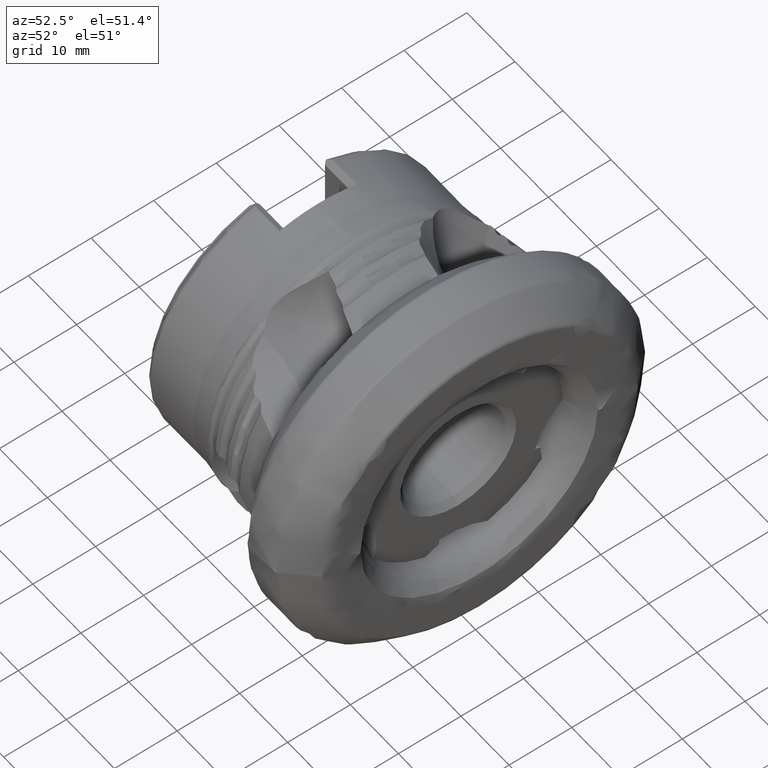
[diagram: clean part render]
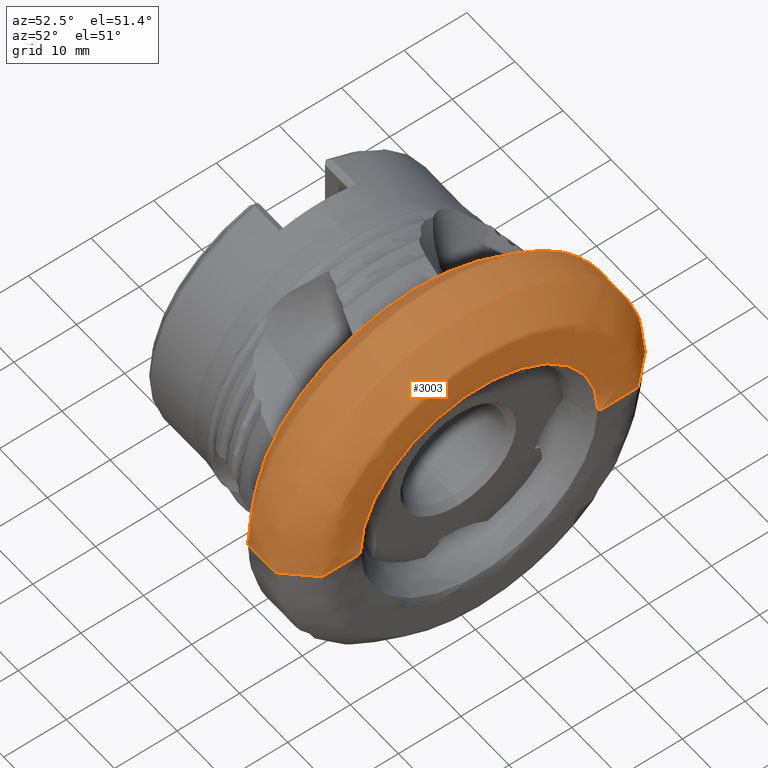
[diagram: same view with one face highlighted and labeled with its STEP entity id]
A machine part, auxiliary view. The second image highlights one B-rep face of the part: STEP entity #3003.
In plain terms, the highlighted face is a freeform B-spline surface patch.
Its self-contained STEP definition (entity closure, byte-faithful):
#25 = CARTESIAN_POINT ( 'NONE',  ( 0.9432454846536810800, 19.90024983827806100, 39.80049967655611500 ) ) ;
#38 = CARTESIAN_POINT ( 'NONE',  ( -10.80551909559559000, 27.66160587555212300, 0.0000000000000000000 ) ) ;
#58 = CARTESIAN_POINT ( 'NONE',  ( 0.9046706777717163900, -19.16180625982527600, 38.32361251965055300 ) ) ;
#68 = CARTESIAN_POINT ( 'NONE',  ( -12.54006868245714100, 25.83714694382475900, 51.67429388764951200 ) ) ;
#86 = CARTESIAN_POINT ( 'NONE',  ( 0.9412596605037986100, -19.62641869342596100, 2.403543083162987700E-015 ) ) ;
#98 = CARTESIAN_POINT ( 'NONE',  ( -12.31998867677176300, 26.04140956191254500, 0.0000000000000000000 ) ) ;
#153 = CARTESIAN_POINT ( 'NONE',  ( -0.07305477684879077600, -26.30704612836137500, 3.221683983611952300E-015 ) ) ;
#184 = CARTESIAN_POINT ( 'NONE',  ( 0.9423013763686909300, 21.55155726088563700, 0.0000000000000000000 ) ) ;
#216 = CARTESIAN_POINT ( 'NONE',  ( 0.9424311464093959600, -23.42163104762342500, 46.84326209524685700 ) ) ;
#247 = CARTESIAN_POINT ( 'NONE',  ( 0.6179509337562465500, 25.58180451469969800, 51.16360902939938900 ) ) ;
#302 = EDGE_CURVE ( 'NONE', #7134, #8821, #2266, .T. ) ;
#307 = ORIENTED_EDGE ( 'NONE', *, *, #302, .T. ) ;
#342 = CARTESIAN_POINT ( 'NONE',  ( -3.722625662220722100, -29.54884456436069900, 3.618689791424699000E-015 ) ) ;
#404 = CARTESIAN_POINT ( 'NONE',  ( 0.7385561130063006400, -18.94453239233411100, 2.969985204639369900E-015 ) ) ;
#418 = CARTESIAN_POINT ( 'NONE',  ( -3.576490290116724600, 29.54475454598643200, 59.08950909197286400 ) ) ;
#445 = EDGE_LOOP ( 'NONE', ( #2298, #3347, #307, #4230 ) ) ;
#450 = CARTESIAN_POINT ( 'NONE',  ( -1.457727430506216700, -27.75488882506936200, 55.50977765013872300 ) ) ;
#462 = CARTESIAN_POINT ( 'NONE',  ( 0.9423630900099132500, 22.23558242996433500, 0.0000000000000000000 ) ) ;
#487 = CARTESIAN_POINT ( 'NONE',  ( -0.7401236896275597000, -27.00449980271787700, 54.00899960543575400 ) ) ;
#514 = CARTESIAN_POINT ( 'NONE',  ( -10.53310990459484800, 27.94660367724533100, 0.0000000000000000000 ) ) ;
#522 = CARTESIAN_POINT ( 'NONE',  ( -2.860561921814703800, -29.21975289845814700, 58.43950579691629300 ) ) ;
#553 = CARTESIAN_POINT ( 'NONE',  ( -7.539639875171382700, 29.54635387461969400, 0.0000000000000000000 ) ) ;
#555 = CARTESIAN_POINT ( 'NONE',  ( -9.911627526682799800, -28.59656424641206800, 3.502069087098017700E-015 ) ) ;
#588 = CARTESIAN_POINT ( 'NONE',  ( -8.222392985685424100, -29.55900686008037300, 59.11801372016074700 ) ) ;
#601 = CARTESIAN_POINT ( 'NONE',  ( -1.799504284054661100, 28.11222450101322700, 0.0000000000000000000 ) ) ;
#602 = CARTESIAN_POINT ( 'NONE',  ( -11.12757802941413700, -27.32534052311214300, 3.346389080724074200E-015 ) ) ;
#624 = CARTESIAN_POINT ( 'NONE',  ( -8.939361004888086300, 29.52734492707421400, 0.0000000000000000000 ) ) ;
#638 = CARTESIAN_POINT ( 'NONE',  ( -10.53310990459484300, -27.94660367724533900, 3.422471874037814800E-015 ) ) ;
#653 = CARTESIAN_POINT ( 'NONE',  ( -6.806665271365522700, -29.55139728770377900, 3.619002409871820600E-015 ) ) ;
#665 = CARTESIAN_POINT ( 'NONE',  ( -3.982329476408136500, 29.54672495242269600, 0.0000000000000000000 ) ) ;
#685 = CARTESIAN_POINT ( 'NONE',  ( -8.222392985685433000, 29.55900686008037300, 59.11801372016073200 ) ) ;
#733 = CARTESIAN_POINT ( 'NONE',  ( -3.722625662220729200, 29.54884456436069600, 0.0000000000000000000 ) ) ;
#743 = CARTESIAN_POINT ( 'NONE',  ( 0.9477285725953520400, 19.40911838058831400, 0.0000000000000000000 ) ) ;
#777 = CARTESIAN_POINT ( 'NONE',  ( -11.98519445289182900, -26.44107188957692900, 52.88214377915385700 ) ) ;
#808 = CARTESIAN_POINT ( 'NONE',  ( -12.54006868245713600, -25.83714694382475900, 51.67429388764951200 ) ) ;
#843 = CARTESIAN_POINT ( 'NONE',  ( -12.54006868245713600, -25.83714694382476700, 3.164137930385481000E-015 ) ) ;
#894 = CARTESIAN_POINT ( 'NONE',  ( -0.3982616007149070700, 26.64697253576205300, 0.0000000000000000000 ) ) ;
#928 = CARTESIAN_POINT ( 'NONE',  ( 0.9422988422732790900, -22.86185111452961700, 2.799769278999204000E-015 ) ) ;
#954 = CARTESIAN_POINT ( 'NONE',  ( -5.211291410143413600, 29.55073275541029800, 0.0000000000000000000 ) ) ;
#966 = CARTESIAN_POINT ( 'NONE',  ( 0.9420584297515514100, 23.85718761406077300, 47.71437522812152600 ) ) ;
#993 = CARTESIAN_POINT ( 'NONE',  ( 0.2021584443197662900, 26.01875313578119600, 0.0000000000000000000 ) ) ;
#1086 = CARTESIAN_POINT ( 'NONE',  ( -4.310775778502399900, -29.55186483981307800, 3.619059668491229500E-015 ) ) ;
#1113 = CARTESIAN_POINT ( 'NONE',  ( -2.986595722950437200, -29.35738610956820700, 3.595242893041566700E-015 ) ) ;
#1130 = CARTESIAN_POINT ( 'NONE',  ( -2.986595722950437200, -29.35738610956820700, 3.595242893041566700E-015 ) ) ;
#1167 = CARTESIAN_POINT ( 'NONE',  ( -3.722625662220729200, 29.54884456436069200, 59.09768912872138500 ) ) ;
#1179 = CARTESIAN_POINT ( 'NONE',  ( 0.7385561130062965300, 18.94453239233411100, 0.0000000000000000000 ) ) ;
#1182 = CARTESIAN_POINT ( 'NONE',  ( 0.7917899504424832400, -19.00822990085851000, 2.327836790554338200E-015 ) ) ;
#1197 = CARTESIAN_POINT ( 'NONE',  ( -9.310194076376896900, 29.22340911848167300, 0.0000000000000000000 ) ) ;
#1210 = CARTESIAN_POINT ( 'NONE',  ( -2.163949810604834500, -28.49345900637640500, 56.98691801275281000 ) ) ;
#1223 = CARTESIAN_POINT ( 'NONE',  ( -5.211291410143407400, -29.55073275541030100, 3.618921028137205800E-015 ) ) ;
#1239 = CARTESIAN_POINT ( 'NONE',  ( -1.457727430506216900, -27.75488882506936900, 3.398993576031184200E-015 ) ) ;
#1258 = CARTESIAN_POINT ( 'NONE',  ( -11.50153607037655900, 26.93072593389008400, 0.0000000000000000000 ) ) ;
#1268 = CARTESIAN_POINT ( 'NONE',  ( -2.163949810604834000, -28.49345900637641200, 3.489442336879519200E-015 ) ) ;
#1279 = CARTESIAN_POINT ( 'NONE',  ( -1.457727430506223600, 27.75488882506936500, 0.0000000000000000000 ) ) ;
#1306 = CARTESIAN_POINT ( 'NONE',  ( -10.22130168831546200, 28.27258490436438600, 0.0000000000000000000 ) ) ;
#1322 = CARTESIAN_POINT ( 'NONE',  ( -0.7401236896275661400, 27.00449980271788400, 0.0000000000000000000 ) ) ;
#1347 = CARTESIAN_POINT ( 'NONE',  ( -9.650166488599961000, -28.86957580416046900, 57.73915160832093800 ) ) ;
#1360 = CARTESIAN_POINT ( 'NONE',  ( -9.650166488599961000, -28.86957580416047600, 3.535503360130699000E-015 ) ) ;
#1380 = CARTESIAN_POINT ( 'NONE',  ( -4.752013237341683000, -29.55018368273179900, 59.10036736546359700 ) ) ;
#1415 = CARTESIAN_POINT ( 'NONE',  ( -5.670012926054596400, -29.55062257375885100, 59.10124514751770200 ) ) ;
#1452 = CARTESIAN_POINT ( 'NONE',  ( -9.444344843020408200, -29.08561559208517300, 58.17123118417034500 ) ) ;
#1483 = CARTESIAN_POINT ( 'NONE',  ( -12.31998867677175500, -26.04140956191255200, 3.189152886528147500E-015 ) ) ;
#1501 = CARTESIAN_POINT ( 'NONE',  ( 0.9412596605037938400, 19.62641869342595800, 0.0000000000000000000 ) ) ;
#1513 = CARTESIAN_POINT ( 'NONE',  ( -10.80551909559558300, -27.66160587555212300, 55.32321175110423900 ) ) ;
#1520 = CARTESIAN_POINT ( 'NONE',  ( 0.7385561130062983100, -1.405870208012904000E-015, 0.0000000000000000000 ) ) ;
#1544 = CARTESIAN_POINT ( 'NONE',  ( -11.50153607037655400, -26.93072593389008800, 3.298062731365310500E-015 ) ) ;
#1583 = CARTESIAN_POINT ( 'NONE',  ( -10.53310990459485000, 27.94660367724533100, 55.89320735449066300 ) ) ;
#1616 = CARTESIAN_POINT ( 'NONE',  ( -10.80551909559558300, -27.66160587555213000, 3.387569709477052300E-015 ) ) ;
#1627 = CARTESIAN_POINT ( 'NONE',  ( -6.806665271365529800, 29.55139728770377500, 0.0000000000000000000 ) ) ;
#1640 = CARTESIAN_POINT ( 'NONE',  ( 0.9422988422732790900, -22.86185111452961000, 45.72370222905922100 ) ) ;
#1651 = CARTESIAN_POINT ( 'NONE',  ( -8.648146406903668600, 29.53393171563233800, 0.0000000000000000000 ) ) ;
#1676 = CARTESIAN_POINT ( 'NONE',  ( -0.3982616007149070200, 26.64697253576205300, 53.29394507152409200 ) ) ;
#1712 = CARTESIAN_POINT ( 'NONE',  ( 0.9423013763686960400, -21.55155726088563400, 43.10311452177127500 ) ) ;
#1742 = CARTESIAN_POINT ( 'NONE',  ( 0.9432036262471924500, -24.24985336874392800, 2.969750530782490500E-015 ) ) ;
#1772 = CARTESIAN_POINT ( 'NONE',  ( 0.9167846937707341300, -25.20548749268326800, 50.41097498536653600 ) ) ;
#1844 = CARTESIAN_POINT ( 'NONE',  ( -2.437147782426744700, -28.77865183134106200, 3.524368384902793800E-015 ) ) ;
#1895 = CARTESIAN_POINT ( 'NONE',  ( -3.123659307326561900, -29.46999602552260500, 3.609033630354147600E-015 ) ) ;
#1913 = CARTESIAN_POINT ( 'NONE',  ( -3.444442123566253700, 29.55375321320569900, 59.10750642641139800 ) ) ;
#1925 = CARTESIAN_POINT ( 'NONE',  ( 0.9412596605037986100, -19.62641869342596100, 2.403543083162987700E-015 ) ) ;
#1945 = CARTESIAN_POINT ( 'NONE',  ( -2.986595722950444300, 29.35738610956820700, 58.71477221913640000 ) ) ;
#1954 = CARTESIAN_POINT ( 'NONE',  ( 0.9046706777717117300, 19.16180625982527600, 0.0000000000000000000 ) ) ;
#1957 = CARTESIAN_POINT ( 'NONE',  ( 0.9432454846536858500, -19.90024983827806800, 2.437077726667986200E-015 ) ) ;
#1977 = CARTESIAN_POINT ( 'NONE',  ( -3.295840571662477500, 29.53577617511956900, 0.0000000000000000000 ) ) ;
#2010 = CARTESIAN_POINT ( 'NONE',  ( -3.123659307326561900, -29.46999602552260500, 3.609033630354147600E-015 ) ) ;
#2045 = EDGE_CURVE ( 'NONE', #7134, #3778, #2185, .T. ) ;
#2046 = CARTESIAN_POINT ( 'NONE',  ( -2.986595722950437200, -29.35738610956820000, 58.71477221913640000 ) ) ;
#2059 = CARTESIAN_POINT ( 'NONE',  ( -8.939361004888079200, -29.52734492707422100, 3.616056845226127400E-015 ) ) ;
#2075 = CARTESIAN_POINT ( 'NONE',  ( -10.22130168831545500, -28.27258490436439000, 56.54516980872876500 ) ) ;
#2085 = CARTESIAN_POINT ( 'NONE',  ( -7.539639875171375600, -29.54635387461970100, 3.618384769902800700E-015 ) ) ;
#2102 = CARTESIAN_POINT ( 'NONE',  ( -9.310194076376896900, 29.22340911848166900, 58.44681823696333100 ) ) ;
#2135 = CARTESIAN_POINT ( 'NONE',  ( -8.222392985685433000, 29.55900686008037000, 0.0000000000000000000 ) ) ;
#2175 = CARTESIAN_POINT ( 'NONE',  ( -5.211291410143413600, 29.55073275541029800, 59.10146551082058200 ) ) ;
#2185 = CIRCLE ( 'NONE', #6443, 18.94453239233411100 ) ;
#2199 = CARTESIAN_POINT ( 'NONE',  ( -9.911627526682805100, 28.59656424641206100, 57.19312849282412300 ) ) ;
#2207 = CARTESIAN_POINT ( 'NONE',  ( -3.576490290116724600, 29.54475454598643200, 0.0000000000000000000 ) ) ;
#2220 = CARTESIAN_POINT ( 'NONE',  ( 0.9046706777717117300, 19.16180625982527600, 38.32361251965053800 ) ) ;
#2229 = CARTESIAN_POINT ( 'NONE',  ( -11.12757802941413700, -27.32534052311214300, 3.346389080724074200E-015 ) ) ;
#2256 = CARTESIAN_POINT ( 'NONE',  ( 0.9419104269292609700, 20.32380301286889700, 40.64760602573778700 ) ) ;
#2266 = B_SPLINE_CURVE_WITH_KNOTS ( 'NONE', 3,
 ( #1179, #7147, #1954, #2699, #9343, #7952, #4186, #8707, #9440, #462, #5592, #8125, #6514, #5730, #6481, #9542, #8026, #4253, #7285, #7324, #5000, #9605, #5858, #1322, #5767, #1279, #601, #2793, #8846, #2830, #4318, #8057, #3529, #8939, #9674, #2207, #733, #665, #9184, #5438, #954, #3052, #6079, #1627, #553, #9690, #1651, #5450, #3442, #9263, #1197, #5705, #9484, #4959, #8752, #514, #7027, #8788, #1258, #6494, #2776, #5015, #5479 ),
 .UNSPECIFIED., .F., .F.,
 ( 4, 1, 1, 1, 1, 1, 1, 1, 1, 1, 1, 1, 1, 1, 1, 1, 1, 1, 1, 1, 1, 1, 1, 1, 1, 1, 1, 1, 1, 1, 1, 1, 1, 1, 1, 1, 1, 1, 1, 1, 1, 1, 1, 1, 1, 1, 1, 1, 1, 1, 1, 1, 1, 1, 1, 1, 1, 1, 1, 1, 4 ),
 ( 0.0000000000000000000, 0.005336723286770063200, 0.01212860659279444200, 0.01567358982454503100, 0.01943358728359822000, 0.02981834217050706800, 0.04306785702621823000, 0.05739165687023035200, 0.07123677042237765200, 0.08729258904460562900, 0.09788251155909083500, 0.1074291189924119600, 0.1154523316225435500, 0.1232724249455831700, 0.1303449342519609500, 0.1350759543519649000, 0.1424622090603294700, 0.1446312708380060900, 0.1514663943759772000, 0.1577702996542820200, 0.1683113312679394800, 0.1772332891720553600, 0.1881864627106401000, 0.2002934200646846500, 0.2080525406900776100, 0.2244967767082922400, 0.2322628759411893000, 0.2421518508155089400, 0.2500303406107132800, 0.2557220565000349300, 0.2582226079815860800, 0.2620990899921240000, 0.2670785681187596300, 0.2698879685134871200, 0.2717164569266976000, 0.2756209491932891700, 0.2793340447801457800, 0.2885081907533964500, 0.2968567711935686800, 0.3078617181374321300, 0.3182025734553727300, 0.3265146435358786100, 0.3391992532624059600, 0.3603469664792204300, 0.3739536346729848100, 0.3832189047292273200, 0.3881177439709975200, 0.3924015162902883500, 0.3948420529387353700, 0.3970109302490569800, 0.4027420945276258800, 0.4072823055527560200, 0.4163006448589244800, 0.4271835960204944900, 0.4362582576890412000, 0.4454660008295108200, 0.4526732639430903200, 0.4663620965890308800, 0.4806156404763539700, 0.4971647316812856100, 0.5000000000000012200 ),
 .UNSPECIFIED. ) ;
#2267 = CARTESIAN_POINT ( 'NONE',  ( -12.57237849659181700, -25.80738480597495500, 3.160493119700125600E-015 ) ) ;
#2298 = ORIENTED_EDGE ( 'NONE', *, *, #9617, .F. ) ;
#2313 = CARTESIAN_POINT ( 'NONE',  ( 0.9046706777717117300, 19.16180625982527600, 0.0000000000000000000 ) ) ;
#2345 = CARTESIAN_POINT ( 'NONE',  ( 0.9432454846536859600, -19.90024983827806100, 39.80049967655612200 ) ) ;
#2386 = CARTESIAN_POINT ( 'NONE',  ( -0.07305477684879077600, -26.30704612836136400, 52.61409225672272800 ) ) ;
#2416 = CARTESIAN_POINT ( 'NONE',  ( -0.07305477684879714600, 26.30704612836137100, 0.0000000000000000000 ) ) ;
#2432 = AXIS2_PLACEMENT_3D ( 'NONE', #7341, #2753, #3580 ) ;
#2445 = CARTESIAN_POINT ( 'NONE',  ( 0.9423013763686909300, 21.55155726088563700, 43.10311452177126800 ) ) ;
#2475 = CARTESIAN_POINT ( 'NONE',  ( 0.9510373085890191400, 24.90754816651700000, 0.0000000000000000000 ) ) ;
#2512 = CARTESIAN_POINT ( 'NONE',  ( 0.2021584443197725600, -26.01875313578120000, 3.186378274553960100E-015 ) ) ;
#2572 = CARTESIAN_POINT ( 'NONE',  ( 0.9422988422732790900, -22.86185111452961700, 2.799769278999204000E-015 ) ) ;
#2654 = CARTESIAN_POINT ( 'NONE',  ( -2.687196561295948100, 29.04154828397181700, 58.08309656794363500 ) ) ;
#2666 = CARTESIAN_POINT ( 'NONE',  ( 0.9423630900099186900, -22.23558242996433900, 2.723073485003295100E-015 ) ) ;
#2688 = CARTESIAN_POINT ( 'NONE',  ( -1.457727430506223600, 27.75488882506936500, 55.50977765013870900 ) ) ;
#2699 = CARTESIAN_POINT ( 'NONE',  ( 0.9477285725953520400, 19.40911838058831400, 0.0000000000000000000 ) ) ;
#2701 = CARTESIAN_POINT ( 'NONE',  ( 0.2021584443197725600, -26.01875313578120000, 3.186378274553960100E-015 ) ) ;
#2721 = CARTESIAN_POINT ( 'NONE',  ( -2.437147782426751800, 28.77865183134105800, 57.55730366268210900 ) ) ;
#2753 = DIRECTION ( 'NONE',  ( 1.000000000000000000, 1.209405225939784600E-016, -0.0000000000000000000 ) ) ;
#2758 = CARTESIAN_POINT ( 'NONE',  ( -0.7401236896275597000, -27.00449980271788800, 3.307097424597378500E-015 ) ) ;
#2776 = CARTESIAN_POINT ( 'NONE',  ( -12.31998867677176300, 26.04140956191254500, 0.0000000000000000000 ) ) ;
#2784 = CARTESIAN_POINT ( 'NONE',  ( -1.069583029910316800, -27.34899713497096100, 3.349286180123231400E-015 ) ) ;
#2793 = CARTESIAN_POINT ( 'NONE',  ( -2.163949810604841200, 28.49345900637640800, 0.0000000000000000000 ) ) ;
#2818 = CARTESIAN_POINT ( 'NONE',  ( -5.211291410143407400, -29.55073275541030100, 3.618921028137205800E-015 ) ) ;
#2830 = CARTESIAN_POINT ( 'NONE',  ( -2.687196561295947600, 29.04154828397181700, 0.0000000000000000000 ) ) ;
#2854 = CARTESIAN_POINT ( 'NONE',  ( -7.539639875171382700, 29.54635387461969400, 0.0000000000000000000 ) ) ;
#2885 = CARTESIAN_POINT ( 'NONE',  ( -9.310194076376889800, -29.22340911848168000, 3.578835443712215800E-015 ) ) ;
#2914 = CARTESIAN_POINT ( 'NONE',  ( -9.098403478170540700, -29.43169378815279600, 58.86338757630559100 ) ) ;
#2946 = CARTESIAN_POINT ( 'NONE',  ( -9.911627526682799800, -28.59656424641206100, 57.19312849282412300 ) ) ;
#2998 = CARTESIAN_POINT ( 'NONE',  ( 0.7385561130062965300, 18.94453239233411100, 0.0000000000000000000 ) ) ;
#3003 = ADVANCED_FACE ( 'NONE', ( #4380 ), #8214, .T. ) ;
#3013 = DIRECTION ( 'NONE',  ( -9.729159079013130100E-017, 1.000000000000000000, 0.0000000000000000000 ) ) ;
#3052 = CARTESIAN_POINT ( 'NONE',  ( -5.670012926054603500, 29.55062257375885800, 0.0000000000000000000 ) ) ;
#3096 = CARTESIAN_POINT ( 'NONE',  ( 0.9419104269292657400, -20.32380301286889700, 40.64760602573779400 ) ) ;
#3107 = CARTESIAN_POINT ( 'NONE',  ( -11.98519445289183400, 26.44107188957692900, 0.0000000000000000000 ) ) ;
#3122 = CARTESIAN_POINT ( 'NONE',  ( 0.9510373085890191400, 24.90754816651700000, 49.81509633303398500 ) ) ;
#3152 = CARTESIAN_POINT ( 'NONE',  ( 0.9510373085890251300, -24.90754816651700300, 3.050294913673356900E-015 ) ) ;
#3186 = CARTESIAN_POINT ( 'NONE',  ( 0.9420584297515513000, 23.85718761406077000, 0.0000000000000000000 ) ) ;
#3216 = CARTESIAN_POINT ( 'NONE',  ( 0.9423630900099132500, 22.23558242996433500, 0.0000000000000000000 ) ) ;
#3242 = CARTESIAN_POINT ( 'NONE',  ( -0.07305477684879715900, 26.30704612836136700, 52.61409225672272800 ) ) ;
#3293 = CARTESIAN_POINT ( 'NONE',  ( -12.57237849659178000, 25.80738480597498700, 0.0000000000000000000 ) ) ;
#3347 = ORIENTED_EDGE ( 'NONE', *, *, #2045, .F. ) ;
#3389 = CARTESIAN_POINT ( 'NONE',  ( -2.437147782426751800, 28.77865183134105800, 0.0000000000000000000 ) ) ;
#3403 = CARTESIAN_POINT ( 'NONE',  ( 0.7966744208640145200, -25.40262102329914000, 3.110923852613654900E-015 ) ) ;
#3423 = CARTESIAN_POINT ( 'NONE',  ( -3.576490290116724600, 29.54475454598643200, 0.0000000000000000000 ) ) ;
#3442 = CARTESIAN_POINT ( 'NONE',  ( -9.098403478170547800, 29.43169378815279600, 0.0000000000000000000 ) ) ;
#3452 = CARTESIAN_POINT ( 'NONE',  ( -2.437147782426744700, -28.77865183134105500, 57.55730366268210900 ) ) ;
#3461 = CARTESIAN_POINT ( 'NONE',  ( -6.806665271365522700, -29.55139728770377900, 3.619002409871820600E-015 ) ) ;
#3478 = CARTESIAN_POINT ( 'NONE',  ( -1.799504284054654500, -28.11222450101322300, 56.22444900202644600 ) ) ;
#3492 = CARTESIAN_POINT ( 'NONE',  ( -9.444344843020406400, -29.08561559208517600, 3.561960603607744800E-015 ) ) ;
#3515 = CARTESIAN_POINT ( 'NONE',  ( -3.444442123566246600, -29.55375321320569900, 59.10750642641139800 ) ) ;
#3529 = CARTESIAN_POINT ( 'NONE',  ( -3.123659307326568600, 29.46999602552260100, 0.0000000000000000000 ) ) ;
#3532 = CARTESIAN_POINT ( 'NONE',  ( -5.670012926054596400, -29.55062257375886100, 3.618907534776530600E-015 ) ) ;
#3554 = CARTESIAN_POINT ( 'NONE',  ( -5.670012926054603500, 29.55062257375885800, 59.10124514751770200 ) ) ;
#3580 = DIRECTION ( 'NONE',  ( -1.344362080093586000E-016, 1.000000000000000000, 0.0000000000000000000 ) ) ;
#3583 = CARTESIAN_POINT ( 'NONE',  ( -4.752013237341690100, 29.55018368273180200, 0.0000000000000000000 ) ) ;
#3598 = CARTESIAN_POINT ( 'NONE',  ( -10.22130168831545500, -28.27258490436439300, 3.462393060675162500E-015 ) ) ;
#3621 = CARTESIAN_POINT ( 'NONE',  ( -9.650166488599968100, 28.86957580416046900, 57.73915160832093800 ) ) ;
#3657 = CARTESIAN_POINT ( 'NONE',  ( -6.154688479432054200, -29.55052807045239000, 3.618895961459352900E-015 ) ) ;
#3692 = CARTESIAN_POINT ( 'NONE',  ( -6.154688479432061300, 29.55052807045238700, 59.10105614090476000 ) ) ;
#3778 = VERTEX_POINT ( 'NONE', #6274 ) ;
#3792 = CARTESIAN_POINT ( 'NONE',  ( -10.53310990459484300, -27.94660367724533100, 55.89320735449066300 ) ) ;
#3812 = CARTESIAN_POINT ( 'NONE',  ( 0.7917899504424832400, -19.00822990085851000, 38.01645980171701900 ) ) ;
#3822 = CARTESIAN_POINT ( 'NONE',  ( -11.12757802941414400, 27.32534052311213600, 54.65068104622425700 ) ) ;
#3876 = CARTESIAN_POINT ( 'NONE',  ( 0.9510373085890252400, -24.90754816651699200, 49.81509633303398500 ) ) ;
#3911 = CARTESIAN_POINT ( 'NONE',  ( -0.3982616007149006300, -26.64697253576204600, 53.29394507152409200 ) ) ;
#3940 = CARTESIAN_POINT ( 'NONE',  ( 0.9423630900099186900, -22.23558242996433900, 2.723073485003295100E-015 ) ) ;
#3966 = CARTESIAN_POINT ( 'NONE',  ( 0.9432036262471864600, 24.24985336874392400, 48.49970673748784100 ) ) ;
#4002 = CARTESIAN_POINT ( 'NONE',  ( 0.9393196486954885600, -24.60441873410690800, 3.013172264760519200E-015 ) ) ;
#4086 = CARTESIAN_POINT ( 'NONE',  ( 0.9432036262471924500, -24.24985336874392800, 2.969750530782490500E-015 ) ) ;
#4145 = CARTESIAN_POINT ( 'NONE',  ( -2.687196561295947600, 29.04154828397181700, 0.0000000000000000000 ) ) ;
#4176 = CARTESIAN_POINT ( 'NONE',  ( -3.982329476408129800, -29.54672495242270000, 3.618430213827168800E-015 ) ) ;
#4186 = CARTESIAN_POINT ( 'NONE',  ( 0.9419104269292608600, 20.32380301286889300, 0.0000000000000000000 ) ) ;
#4190 = CARTESIAN_POINT ( 'NONE',  ( 0.9419104269292657400, -20.32380301286889700, 2.488948030621122600E-015 ) ) ;
#4211 = CARTESIAN_POINT ( 'NONE',  ( -3.295840571662470800, -29.53577617511956200, 59.07155235023912400 ) ) ;
#4230 = ORIENTED_EDGE ( 'NONE', *, *, #7742, .T. ) ;
#4243 = CARTESIAN_POINT ( 'NONE',  ( -2.437147782426744700, -28.77865183134106200, 3.524368384902793800E-015 ) ) ;
#4253 = CARTESIAN_POINT ( 'NONE',  ( 0.7966744208640084100, 25.40262102329913700, 0.0000000000000000000 ) ) ;
#4274 = CARTESIAN_POINT ( 'NONE',  ( -3.576490290116717900, -29.54475454598643600, 3.618188908633649500E-015 ) ) ;
#4288 = CARTESIAN_POINT ( 'NONE',  ( -9.911627526682799800, -28.59656424641206800, 3.502069087098017700E-015 ) ) ;
#4309 = CARTESIAN_POINT ( 'NONE',  ( -8.648146406903663300, -29.53393171563233500, 59.06786343126466900 ) ) ;
#4318 = CARTESIAN_POINT ( 'NONE',  ( -2.860561921814710900, 29.21975289845815000, 0.0000000000000000000 ) ) ;
#4322 = CARTESIAN_POINT ( 'NONE',  ( -9.310194076376889800, -29.22340911848168000, 3.578835443712215800E-015 ) ) ;
#4344 = CARTESIAN_POINT ( 'NONE',  ( -9.444344843020413500, 29.08561559208517300, 58.17123118417033100 ) ) ;
#4360 = CARTESIAN_POINT ( 'NONE',  ( -9.098403478170540700, -29.43169378815280300, 3.604342959114636100E-015 ) ) ;
#4380 = FACE_OUTER_BOUND ( 'NONE', #445, .T. ) ;
#4384 = CARTESIAN_POINT ( 'NONE',  ( -9.911627526682805100, 28.59656424641206100, 0.0000000000000000000 ) ) ;
#4408 = CARTESIAN_POINT ( 'NONE',  ( -9.201792607590881800, -29.34131922297942200, 58.68263844595884400 ) ) ;
#4445 = CARTESIAN_POINT ( 'NONE',  ( -8.222392985685425900, -29.55900686008037700, 3.619934313717208500E-015 ) ) ;
#4513 = CARTESIAN_POINT ( 'NONE',  ( -10.22130168831545500, -28.27258490436439300, 3.462393060675162500E-015 ) ) ;
#4532 = CARTESIAN_POINT ( 'NONE',  ( 0.7917899504424785700, 19.00822990085850600, 0.0000000000000000000 ) ) ;
#4544 = CARTESIAN_POINT ( 'NONE',  ( -12.31998867677175500, -26.04140956191254100, 52.08281912382508200 ) ) ;
#4562 = CARTESIAN_POINT ( 'NONE',  ( 0.9412596605037987200, -19.62641869342595800, 39.25283738685191500 ) ) ;
#4576 = CARTESIAN_POINT ( 'NONE',  ( -11.12757802941413700, -27.32534052311213600, 54.65068104622425700 ) ) ;
#4633 = CARTESIAN_POINT ( 'NONE',  ( 0.4558702979673990300, 25.75471324353240000, 0.0000000000000000000 ) ) ;
#4660 = CARTESIAN_POINT ( 'NONE',  ( 0.6179509337562466600, 25.58180451469969400, 0.0000000000000000000 ) ) ;
#4695 = CARTESIAN_POINT ( 'NONE',  ( 0.9422988422732735400, 22.86185111452961000, 45.72370222905922100 ) ) ;
#4729 = CARTESIAN_POINT ( 'NONE',  ( 0.9167846937707280200, 25.20548749268326800, 0.0000000000000000000 ) ) ;
#4826 = CARTESIAN_POINT ( 'NONE',  ( 0.9393196486954885600, -24.60441873410690800, 3.013172264760519200E-015 ) ) ;
#4899 = CARTESIAN_POINT ( 'NONE',  ( -2.860561921814704300, -29.21975289845815400, 3.578387685897336900E-015 ) ) ;
#4913 = CARTESIAN_POINT ( 'NONE',  ( -2.163949810604834000, -28.49345900637641200, 3.489442336879519200E-015 ) ) ;
#4934 = CARTESIAN_POINT ( 'NONE',  ( -4.310775778502399900, -29.55186483981307400, 59.10372967962614900 ) ) ;
#4948 = CARTESIAN_POINT ( 'NONE',  ( -1.799504284054654200, -28.11222450101323000, 3.442754575207764400E-015 ) ) ;
#4959 = CARTESIAN_POINT ( 'NONE',  ( -9.911627526682805100, 28.59656424641206100, 0.0000000000000000000 ) ) ;
#4965 = CARTESIAN_POINT ( 'NONE',  ( -1.069583029910323500, 27.34899713497095800, 0.0000000000000000000 ) ) ;
#4977 = CARTESIAN_POINT ( 'NONE',  ( -11.98519445289182700, -26.44107188957693600, 3.238097405559544500E-015 ) ) ;
#4993 = CARTESIAN_POINT ( 'NONE',  ( -0.7401236896275661400, 27.00449980271788400, 0.0000000000000000000 ) ) ;
#5000 = CARTESIAN_POINT ( 'NONE',  ( 0.2021584443197662900, 26.01875313578119600, 0.0000000000000000000 ) ) ;
#5015 = CARTESIAN_POINT ( 'NONE',  ( -12.54006868245714300, 25.83714694382475900, 0.0000000000000000000 ) ) ;
#5023 = CARTESIAN_POINT ( 'NONE',  ( -3.722625662220722100, -29.54884456436069900, 3.618689791424699000E-015 ) ) ;
#5036 = CARTESIAN_POINT ( 'NONE',  ( -12.31998867677175400, -26.04140956191255200, 3.189152886528147500E-015 ) ) ;
#5062 = CARTESIAN_POINT ( 'NONE',  ( -6.806665271365522700, -29.55139728770377200, 59.10279457540754300 ) ) ;
#5094 = CARTESIAN_POINT ( 'NONE',  ( -6.806665271365529800, 29.55139728770377500, 0.0000000000000000000 ) ) ;
#5125 = CARTESIAN_POINT ( 'NONE',  ( -9.098403478170540700, -29.43169378815280300, 3.604342959114636100E-015 ) ) ;
#5161 = CARTESIAN_POINT ( 'NONE',  ( -8.939361004888088000, 29.52734492707421100, 59.05468985414842100 ) ) ;
#5198 = CARTESIAN_POINT ( 'NONE',  ( -12.57237849659182400, 25.80738480597494800, 0.0000000000000000000 ) ) ;
#5218 = CARTESIAN_POINT ( 'NONE',  ( 0.7917899504424831300, -19.00822990085851000, 2.327836790554338200E-015 ) ) ;
#5245 = CARTESIAN_POINT ( 'NONE',  ( 0.9419104269292608600, 20.32380301286889300, 0.0000000000000000000 ) ) ;
#5256 = CARTESIAN_POINT ( 'NONE',  ( -11.50153607037655900, 26.93072593389008400, 53.86145186778016100 ) ) ;
#5317 = CARTESIAN_POINT ( 'NONE',  ( 0.9432454846536810800, 19.90024983827806400, 0.0000000000000000000 ) ) ;
#5330 = CARTESIAN_POINT ( 'NONE',  ( -10.80551909559559000, 27.66160587555212300, 55.32321175110423900 ) ) ;
#5381 = CARTESIAN_POINT ( 'NONE',  ( 0.6179509337562527600, -25.58180451469969400, 51.16360902939938900 ) ) ;
#5415 = CARTESIAN_POINT ( 'NONE',  ( 0.9423630900099133600, 22.23558242996433500, 44.47116485992866300 ) ) ;
#5438 = CARTESIAN_POINT ( 'NONE',  ( -4.752013237341690100, 29.55018368273180200, 0.0000000000000000000 ) ) ;
#5444 = CARTESIAN_POINT ( 'NONE',  ( 0.9424799968132219200, -20.91096177099956700, 2.560854239994728300E-015 ) ) ;
#5450 = CARTESIAN_POINT ( 'NONE',  ( -8.939361004888086300, 29.52734492707421400, 0.0000000000000000000 ) ) ;
#5469 = CARTESIAN_POINT ( 'NONE',  ( 0.6179509337562527600, -25.58180451469969800, 3.132867501534029200E-015 ) ) ;
#5477 = CARTESIAN_POINT ( 'NONE',  ( 0.7385561130062965300, 18.94453239233411100, 0.0000000000000000000 ) ) ;
#5479 = CARTESIAN_POINT ( 'NONE',  ( -12.57237849659178000, 25.80738480597498700, 0.0000000000000000000 ) ) ;
#5566 = CARTESIAN_POINT ( 'NONE',  ( -3.982329476408129800, -29.54672495242270000, 3.618430213827168800E-015 ) ) ;
#5592 = CARTESIAN_POINT ( 'NONE',  ( 0.9422988422732735400, 22.86185111452961400, 0.0000000000000000000 ) ) ;
#5598 = CARTESIAN_POINT ( 'NONE',  ( -1.457727430506216900, -27.75488882506936900, 3.398993576031184200E-015 ) ) ;
#5622 = CARTESIAN_POINT ( 'NONE',  ( -2.163949810604841200, 28.49345900637641200, 56.98691801275281000 ) ) ;
#5634 = CARTESIAN_POINT ( 'NONE',  ( 0.6179509337562527600, -25.58180451469969800, 3.132867501534029200E-015 ) ) ;
#5654 = CARTESIAN_POINT ( 'NONE',  ( -3.982329476408129800, -29.54672495242269600, 59.09344990484539300 ) ) ;
#5681 = CARTESIAN_POINT ( 'NONE',  ( -1.799504284054661100, 28.11222450101322700, 0.0000000000000000000 ) ) ;
#5690 = CARTESIAN_POINT ( 'NONE',  ( 0.9046706777717163900, -19.16180625982528000, 2.346644470197674100E-015 ) ) ;
#5705 = CARTESIAN_POINT ( 'NONE',  ( -9.444344843020413500, 29.08561559208516900, 0.0000000000000000000 ) ) ;
#5718 = CARTESIAN_POINT ( 'NONE',  ( -1.069583029910323700, 27.34899713497095800, 54.69799426994190100 ) ) ;
#5730 = CARTESIAN_POINT ( 'NONE',  ( 0.9432036262471865700, 24.24985336874392400, 0.0000000000000000000 ) ) ;
#5753 = CARTESIAN_POINT ( 'NONE',  ( -2.986595722950444300, 29.35738610956820300, 0.0000000000000000000 ) ) ;
#5767 = CARTESIAN_POINT ( 'NONE',  ( -1.069583029910323500, 27.34899713497095800, 0.0000000000000000000 ) ) ;
#5792 = CARTESIAN_POINT ( 'NONE',  ( -6.154688479432054200, -29.55052807045238000, 59.10105614090476000 ) ) ;
#5804 = CARTESIAN_POINT ( 'NONE',  ( -12.57237849659177300, -25.80738480597499400, 3.160493119700180000E-015 ) ) ;
#5820 = CARTESIAN_POINT ( 'NONE',  ( -9.444344843020406400, -29.08561559208517600, 3.561960603607744800E-015 ) ) ;
#5847 = CARTESIAN_POINT ( 'NONE',  ( -9.310194076376896900, 29.22340911848167300, 0.0000000000000000000 ) ) ;
#5858 = CARTESIAN_POINT ( 'NONE',  ( -0.3982616007149070700, 26.64697253576205300, 0.0000000000000000000 ) ) ;
#5885 = CARTESIAN_POINT ( 'NONE',  ( -9.201792607590888900, 29.34131922297942200, 58.68263844595883700 ) ) ;
#5914 = CARTESIAN_POINT ( 'NONE',  ( -9.201792607590888900, 29.34131922297942200, 0.0000000000000000000 ) ) ;
#5945 = CARTESIAN_POINT ( 'NONE',  ( -10.53310990459484300, -27.94660367724533900, 3.422471874037814800E-015 ) ) ;
#6030 = CARTESIAN_POINT ( 'NONE',  ( 0.7385561130063010800, -18.94453239233411400, 2.320036095561531700E-015 ) ) ;
#6039 = CARTESIAN_POINT ( 'NONE',  ( -12.31998867677176400, 26.04140956191254100, 52.08281912382508200 ) ) ;
#6079 = CARTESIAN_POINT ( 'NONE',  ( -6.154688479432061300, 29.55052807045238700, 0.0000000000000000000 ) ) ;
#6091 = CARTESIAN_POINT ( 'NONE',  ( 0.2021584443197662900, 26.01875313578119600, 52.03750627156238600 ) ) ;
#6125 = CARTESIAN_POINT ( 'NONE',  ( 0.9424311464093904100, 23.42163104762342800, 0.0000000000000000000 ) ) ;
#6154 = CARTESIAN_POINT ( 'NONE',  ( 0.9393196486954826800, 24.60441873410690100, 49.20883746821378700 ) ) ;
#6187 = CARTESIAN_POINT ( 'NONE',  ( 0.9422988422732735400, 22.86185111452961400, 0.0000000000000000000 ) ) ;
#6222 = CARTESIAN_POINT ( 'NONE',  ( 0.4558702979674052500, -25.75471324353239300, 51.50942648706478600 ) ) ;
#6274 = CARTESIAN_POINT ( 'NONE',  ( 0.7385561130063006400, -18.94453239233411100, 2.969985204639369900E-015 ) ) ;
#6278 = CARTESIAN_POINT ( 'NONE',  ( -3.295840571662470400, -29.53577617511957200, 3.617089375319283400E-015 ) ) ;
#6344 = CARTESIAN_POINT ( 'NONE',  ( -0.3982616007149006300, -26.64697253576205700, 3.263312962288842900E-015 ) ) ;
#6363 = CARTESIAN_POINT ( 'NONE',  ( -3.982329476408136500, 29.54672495242269600, 0.0000000000000000000 ) ) ;
#6388 = CARTESIAN_POINT ( 'NONE',  ( -4.310775778502407000, 29.55186483981307400, 0.0000000000000000000 ) ) ;
#6428 = CARTESIAN_POINT ( 'NONE',  ( -2.687196561295941000, -29.04154828397182100, 3.556563914824939600E-015 ) ) ;
#6443 = AXIS2_PLACEMENT_3D ( 'NONE', #1520, #6749, #3013 ) ;
#6444 = CARTESIAN_POINT ( 'NONE',  ( -9.201792607590881800, -29.34131922297942900, 3.593275266918245400E-015 ) ) ;
#6467 = CARTESIAN_POINT ( 'NONE',  ( -2.163949810604841200, 28.49345900637640800, 0.0000000000000000000 ) ) ;
#6481 = CARTESIAN_POINT ( 'NONE',  ( 0.9393196486954825700, 24.60441873410690400, 0.0000000000000000000 ) ) ;
#6494 = CARTESIAN_POINT ( 'NONE',  ( -11.98519445289183400, 26.44107188957692900, 0.0000000000000000000 ) ) ;
#6504 = CARTESIAN_POINT ( 'NONE',  ( -3.123659307326568600, 29.46999602552260100, 0.0000000000000000000 ) ) ;
#6514 = CARTESIAN_POINT ( 'NONE',  ( 0.9420584297515513000, 23.85718761406077000, 0.0000000000000000000 ) ) ;
#6534 = CARTESIAN_POINT ( 'NONE',  ( -10.22130168831546200, 28.27258490436439000, 56.54516980872876500 ) ) ;
#6570 = CARTESIAN_POINT ( 'NONE',  ( -9.650166488599961000, -28.86957580416047600, 3.535503360130699000E-015 ) ) ;
#6607 = CARTESIAN_POINT ( 'NONE',  ( -6.154688479432061300, 29.55052807045238700, 0.0000000000000000000 ) ) ;
#6636 = CARTESIAN_POINT ( 'NONE',  ( -4.752013237341690100, 29.55018368273179900, 59.10036736546359700 ) ) ;
#6670 = CARTESIAN_POINT ( 'NONE',  ( -8.648146406903670400, 29.53393171563233500, 59.06786343126466900 ) ) ;
#6708 = CARTESIAN_POINT ( 'NONE',  ( -11.12757802941414400, 27.32534052311213600, 0.0000000000000000000 ) ) ;
#6729 = CARTESIAN_POINT ( 'NONE',  ( 0.9432454846536858500, -19.90024983827806800, 2.437077726667986200E-015 ) ) ;
#6749 = DIRECTION ( 'NONE',  ( 1.000000000000000000, 1.209405225939784600E-016, -0.0000000000000000000 ) ) ;
#6758 = CARTESIAN_POINT ( 'NONE',  ( -12.57237849659177300, -25.80738480597499400, 3.160493119700180000E-015 ) ) ;
#6771 = CARTESIAN_POINT ( 'NONE',  ( -11.50153607037655200, -26.93072593389008400, 53.86145186778016100 ) ) ;
#6793 = CARTESIAN_POINT ( 'NONE',  ( 0.9477285725953520400, 19.40911838058831400, 38.81823676117661400 ) ) ;
#6807 = CARTESIAN_POINT ( 'NONE',  ( -12.54006868245714300, 25.83714694382475900, 0.0000000000000000000 ) ) ;
#6833 = CARTESIAN_POINT ( 'NONE',  ( 0.9046706777717163900, -19.16180625982528000, 2.346644470197674100E-015 ) ) ;
#6845 = CARTESIAN_POINT ( 'NONE',  ( -12.57237849659181500, -25.80738480597494400, 51.61476961194988900 ) ) ;
#6864 = CARTESIAN_POINT ( 'NONE',  ( 0.9424311464093960700, -23.42163104762343200, 2.868322549328229700E-015 ) ) ;
#6892 = CARTESIAN_POINT ( 'NONE',  ( 0.9420584297515570700, -23.85718761406076600, 47.71437522812153300 ) ) ;
#6923 = CARTESIAN_POINT ( 'NONE',  ( 0.7966744208640145200, -25.40262102329914000, 3.110923852613654900E-015 ) ) ;
#6959 = CARTESIAN_POINT ( 'NONE',  ( 0.9393196486954825700, 24.60441873410690400, 0.0000000000000000000 ) ) ;
#6988 = CARTESIAN_POINT ( 'NONE',  ( 0.2021584443197725300, -26.01875313578119300, 52.03750627156238600 ) ) ;
#7027 = CARTESIAN_POINT ( 'NONE',  ( -10.80551909559559000, 27.66160587555212300, 0.0000000000000000000 ) ) ;
#7061 = CARTESIAN_POINT ( 'NONE',  ( -3.576490290116717900, -29.54475454598643600, 3.618188908633649500E-015 ) ) ;
#7115 = CARTESIAN_POINT ( 'NONE',  ( -3.444442123566247000, -29.55375321320570600, 3.619290927534316900E-015 ) ) ;
#7134 = VERTEX_POINT ( 'NONE', #5477 ) ;
#7138 = CARTESIAN_POINT ( 'NONE',  ( -3.982329476408136500, 29.54672495242269600, 59.09344990484539300 ) ) ;
#7147 = CARTESIAN_POINT ( 'NONE',  ( 0.7917899504424785700, 19.00822990085850600, 0.0000000000000000000 ) ) ;
#7149 = CARTESIAN_POINT ( 'NONE',  ( 0.9424799968132219200, -20.91096177099956700, 2.560854239994728300E-015 ) ) ;
#7169 = CARTESIAN_POINT ( 'NONE',  ( -1.457727430506223600, 27.75488882506936500, 0.0000000000000000000 ) ) ;
#7185 = CARTESIAN_POINT ( 'NONE',  ( 0.9167846937707341300, -25.20548749268327200, 3.086781957886320600E-015 ) ) ;
#7206 = CARTESIAN_POINT ( 'NONE',  ( -1.069583029910316800, -27.34899713497095100, 54.69799426994190100 ) ) ;
#7241 = CARTESIAN_POINT ( 'NONE',  ( -1.799504284054661100, 28.11222450101322300, 56.22444900202643200 ) ) ;
#7271 = CARTESIAN_POINT ( 'NONE',  ( -3.123659307326568600, 29.46999602552259700, 58.93999205104519500 ) ) ;
#7285 = CARTESIAN_POINT ( 'NONE',  ( 0.6179509337562466600, 25.58180451469969400, 0.0000000000000000000 ) ) ;
#7287 = CARTESIAN_POINT ( 'NONE',  ( -10.80551909559558300, -27.66160587555213000, 3.387569709477052300E-015 ) ) ;
#7309 = CARTESIAN_POINT ( 'NONE',  ( -5.211291410143407400, -29.55073275541029100, 59.10146551082058200 ) ) ;
#7324 = CARTESIAN_POINT ( 'NONE',  ( 0.4558702979673990300, 25.75471324353240000, 0.0000000000000000000 ) ) ;
#7341 = CARTESIAN_POINT ( 'NONE',  ( -12.57237849659177600, -3.015701595911969500E-015, 0.0000000000000000000 ) ) ;
#7344 = CARTESIAN_POINT ( 'NONE',  ( -5.670012926054596400, -29.55062257375886100, 3.618907534776530600E-015 ) ) ;
#7380 = CARTESIAN_POINT ( 'NONE',  ( -9.201792607590881800, -29.34131922297942900, 3.593275266918245400E-015 ) ) ;
#7413 = CARTESIAN_POINT ( 'NONE',  ( -7.539639875171375600, -29.54635387461970100, 3.618384769902800700E-015 ) ) ;
#7429 = VERTEX_POINT ( 'NONE', #6758 ) ;
#7447 = CARTESIAN_POINT ( 'NONE',  ( -6.806665271365529800, 29.55139728770377900, 59.10279457540754300 ) ) ;
#7465 = CARTESIAN_POINT ( 'NONE',  ( 0.9419104269292657400, -20.32380301286889700, 2.488948030621122600E-015 ) ) ;
#7497 = CARTESIAN_POINT ( 'NONE',  ( 0.9424799968132167000, 20.91096177099956700, 41.82192354199911900 ) ) ;
#7570 = CARTESIAN_POINT ( 'NONE',  ( 0.9477285725953567000, -19.40911838058831400, 38.81823676117662800 ) ) ;
#7614 = CARTESIAN_POINT ( 'NONE',  ( -12.57237849659182400, 25.80738480597494400, 51.61476961194988900 ) ) ;
#7635 = CARTESIAN_POINT ( 'NONE',  ( 0.9424799968132219200, -20.91096177099956700, 41.82192354199913400 ) ) ;
#7670 = CARTESIAN_POINT ( 'NONE',  ( 0.7966744208640084100, 25.40262102329913700, 0.0000000000000000000 ) ) ;
#7701 = CARTESIAN_POINT ( 'NONE',  ( 0.4558702979673990300, 25.75471324353240000, 51.50942648706478600 ) ) ;
#7726 = CARTESIAN_POINT ( 'NONE',  ( 0.9432036262471865700, 24.24985336874392400, 0.0000000000000000000 ) ) ;
#7742 = EDGE_CURVE ( 'NONE', #8821, #7429, #8250, .T. ) ;
#7763 = CARTESIAN_POINT ( 'NONE',  ( 0.7966744208640085300, 25.40262102329914000, 50.80524204659825900 ) ) ;
#7824 = CARTESIAN_POINT ( 'NONE',  ( -0.07305477684879077600, -26.30704612836137500, 3.221683983611952300E-015 ) ) ;
#7912 = CARTESIAN_POINT ( 'NONE',  ( -3.123659307326561900, -29.46999602552259700, 58.93999205104519500 ) ) ;
#7926 = CARTESIAN_POINT ( 'NONE',  ( 0.9420584297515569600, -23.85718761406077300, 2.921662844821740400E-015 ) ) ;
#7941 = CARTESIAN_POINT ( 'NONE',  ( -2.860561921814711400, 29.21975289845815000, 58.43950579691629300 ) ) ;
#7952 = CARTESIAN_POINT ( 'NONE',  ( 0.9432454846536810800, 19.90024983827806400, 0.0000000000000000000 ) ) ;
#7954 = CARTESIAN_POINT ( 'NONE',  ( -2.687196561295941000, -29.04154828397182100, 3.556563914824939600E-015 ) ) ;
#7977 = CARTESIAN_POINT ( 'NONE',  ( -2.860561921814710900, 29.21975289845815000, 0.0000000000000000000 ) ) ;
#7989 = CARTESIAN_POINT ( 'NONE',  ( -4.752013237341683000, -29.55018368273180600, 3.618853786127384900E-015 ) ) ;
#8014 = CARTESIAN_POINT ( 'NONE',  ( -0.7401236896275661400, 27.00449980271788100, 54.00899960543575400 ) ) ;
#8026 = CARTESIAN_POINT ( 'NONE',  ( 0.9167846937707280200, 25.20548749268326800, 0.0000000000000000000 ) ) ;
#8028 = CARTESIAN_POINT ( 'NONE',  ( -8.222392985685425900, -29.55900686008037700, 3.619934313717208500E-015 ) ) ;
#8048 = CARTESIAN_POINT ( 'NONE',  ( -3.444442123566253700, 29.55375321320570200, 0.0000000000000000000 ) ) ;
#8057 = CARTESIAN_POINT ( 'NONE',  ( -2.986595722950444300, 29.35738610956820300, 0.0000000000000000000 ) ) ;
#8081 = CARTESIAN_POINT ( 'NONE',  ( -5.670012926054603500, 29.55062257375885800, 0.0000000000000000000 ) ) ;
#8113 = CARTESIAN_POINT ( 'NONE',  ( -4.310775778502399900, -29.55186483981307800, 3.619059668491229500E-015 ) ) ;
#8125 = CARTESIAN_POINT ( 'NONE',  ( 0.9424311464093904100, 23.42163104762342800, 0.0000000000000000000 ) ) ;
#8152 = CARTESIAN_POINT ( 'NONE',  ( -9.444344843020413500, 29.08561559208516900, 0.0000000000000000000 ) ) ;
#8182 = CARTESIAN_POINT ( 'NONE',  ( -4.752013237341683000, -29.55018368273180600, 3.618853786127384900E-015 ) ) ;
#8212 = CARTESIAN_POINT ( 'NONE',  ( -7.539639875171382700, 29.54635387461969400, 59.09270774923938100 ) ) ;
#8214 =( BOUNDED_SURFACE ( )  B_SPLINE_SURFACE ( 3, 3, ( 
 ( #2998, #9010, #9033, #6030 ),
 ( #4532, #8329, #3812, #5218 ),
 ( #2313, #2220, #58, #6833 ),
 ( #743, #6793, #7570, #9071 ),
 ( #1501, #8234, #4562, #86 ),
 ( #5317, #25, #2345, #6729 ),
 ( #5245, #2256, #3096, #7465 ),
 ( #9103, #7497, #7635, #5444 ),
 ( #184, #2445, #1712, #8396 ),
 ( #3216, #5415, #9198, #3940 ),
 ( #6187, #4695, #1640, #928 ),
 ( #6125, #8493, #216, #6864 ),
 ( #3186, #966, #6892, #8523 ),
 ( #7726, #3966, #8423, #1742 ),
 ( #6959, #6154, #9225, #4002 ),
 ( #2475, #3122, #3876, #3152 ),
 ( #4729, #9255, #1772, #9130 ),
 ( #7670, #7763, #9163, #6923 ),
 ( #4660, #247, #5381, #5469 ),
 ( #4633, #7701, #6222, #8454 ),
 ( #993, #6091, #6988, #2512 ),
 ( #2416, #3242, #2386, #153 ),
 ( #894, #1676, #3911, #8761 ),
 ( #4993, #8014, #487, #2758 ),
 ( #4965, #5718, #7206, #2784 ),
 ( #7169, #2688, #450, #1239 ),
 ( #5681, #7241, #3478, #9397 ),
 ( #6467, #5622, #1210, #1268 ),
 ( #3389, #2721, #3452, #4243 ),
 ( #4145, #2654, #9496, #6428 ),
 ( #7977, #7941, #522, #4899 ),
 ( #5753, #1945, #2046, #1130 ),
 ( #6504, #7271, #7912, #2010 ),
 ( #1977, #8730, #4211, #8659 ),
 ( #8048, #1913, #3515, #8799 ),
 ( #3423, #418, #9460, #4274 ),
 ( #8693, #1167, #9530, #5023 ),
 ( #6363, #7138, #5654, #4176 ),
 ( #6388, #9431, #4934, #8113 ),
 ( #3583, #6636, #1380, #8182 ),
 ( #9563, #2175, #7309, #2818 ),
 ( #8081, #3554, #1415, #7344 ),
 ( #6607, #3692, #5792, #3657 ),
 ( #5094, #7447, #5062, #653 ),
 ( #2854, #8212, #8962, #7413 ),
 ( #2135, #685, #588, #4445 ),
 ( #9693, #6670, #4309, #8891 ),
 ( #624, #5161, #8830, #8924 ),
 ( #9624, #9665, #2914, #5125 ),
 ( #5914, #5885, #4408, #7380 ),
 ( #5847, #2102, #8864, #2885 ),
 ( #8152, #4344, #1452, #5820 ),
 ( #9597, #3621, #1347, #6570 ),
 ( #4384, #2199, #2946, #555 ),
 ( #1306, #6534, #2075, #4513 ),
 ( #8375, #1583, #3792, #5945 ),
 ( #38, #5330, #1513, #1616 ),
 ( #6708, #3822, #4576, #2229 ),
 ( #9084, #5256, #6771, #1544 ),
 ( #3107, #8342, #777, #9046 ),
 ( #98, #6039, #4544, #1483 ),
 ( #6807, #68, #808, #843 ),
 ( #5198, #7614, #6845, #2267 ) ),
 .UNSPECIFIED., .F., .F., .F. ) 
 B_SPLINE_SURFACE_WITH_KNOTS ( ( 4, 1, 1, 1, 1, 1, 1, 1, 1, 1, 1, 1, 1, 1, 1, 1, 1, 1, 1, 1, 1, 1, 1, 1, 1, 1, 1, 1, 1, 1, 1, 1, 1, 1, 1, 1, 1, 1, 1, 1, 1, 1, 1, 1, 1, 1, 1, 1, 1, 1, 1, 1, 1, 1, 1, 1, 1, 1, 1, 1, 4 ),
 ( 4, 4 ),
 ( 0.0000000000000000000, 0.005336723286770063200, 0.01212860659279444200, 0.01567358982454503100, 0.01943358728359822000, 0.02981834217050706800, 0.04306785702621823000, 0.05739165687023035200, 0.07123677042237765200, 0.08729258904460562900, 0.09788251155909083500, 0.1074291189924119600, 0.1154523316225435500, 0.1232724249455831700, 0.1303449342519609500, 0.1350759543519649000, 0.1424622090603294700, 0.1446312708380060900, 0.1514663943759772000, 0.1577702996542820200, 0.1683113312679394800, 0.1772332891720553600, 0.1881864627106401000, 0.2002934200646846500, 0.2080525406900776100, 0.2244967767082922400, 0.2322628759411893000, 0.2421518508155089400, 0.2500303406107132800, 0.2557220565000349300, 0.2582226079815860800, 0.2620990899921240000, 0.2670785681187596300, 0.2698879685134871200, 0.2717164569266976000, 0.2756209491932891700, 0.2793340447801457800, 0.2885081907533964500, 0.2968567711935686800, 0.3078617181374321300, 0.3182025734553727300, 0.3265146435358786100, 0.3391992532624059600, 0.3603469664792204300, 0.3739536346729848100, 0.3832189047292273200, 0.3881177439709975200, 0.3924015162902883500, 0.3948420529387353700, 0.3970109302490569800, 0.4027420945276258800, 0.4072823055527560200, 0.4163006448589244800, 0.4271835960204944900, 0.4362582576890412000, 0.4454660008295108200, 0.4526732639430903200, 0.4663620965890308800, 0.4806156404763539700, 0.4971647316812856100, 0.5000000000000012200 ),
 ( 0.0000000000000000000, 1.000000000000000000 ),
 .UNSPECIFIED. ) 
 GEOMETRIC_REPRESENTATION_ITEM ( )  RATIONAL_B_SPLINE_SURFACE ( (
 ( 1.000000000000000000, 0.3333333333333334300, 0.3333333333333334300, 1.000000000000000000),
 ( 1.000000000000000000, 0.3333333333333334300, 0.3333333333333334300, 1.000000000000000000),
 ( 1.000000000000000000, 0.3333333333333334300, 0.3333333333333334300, 1.000000000000000000),
 ( 1.000000000000000000, 0.3333333333333334300, 0.3333333333333334300, 1.000000000000000000),
 ( 1.000000000000000000, 0.3333333333333334300, 0.3333333333333334300, 1.000000000000000000),
 ( 1.000000000000000000, 0.3333333333333334300, 0.3333333333333334300, 1.000000000000000000),
 ( 1.000000000000000000, 0.3333333333333334300, 0.3333333333333334300, 1.000000000000000000),
 ( 1.000000000000000000, 0.3333333333333334300, 0.3333333333333334300, 1.000000000000000000),
 ( 1.000000000000000000, 0.3333333333333334300, 0.3333333333333334300, 1.000000000000000000),
 ( 1.000000000000000000, 0.3333333333333334300, 0.3333333333333334300, 1.000000000000000000),
 ( 1.000000000000000000, 0.3333333333333334300, 0.3333333333333334300, 1.000000000000000000),
 ( 1.000000000000000000, 0.3333333333333334300, 0.3333333333333334300, 1.000000000000000000),
 ( 1.000000000000000000, 0.3333333333333334300, 0.3333333333333334300, 1.000000000000000000),
 ( 1.000000000000000000, 0.3333333333333334300, 0.3333333333333334300, 1.000000000000000000),
 ( 1.000000000000000000, 0.3333333333333334300, 0.3333333333333334300, 1.000000000000000000),
 ( 1.000000000000000000, 0.3333333333333334300, 0.3333333333333334300, 1.000000000000000000),
 ( 1.000000000000000000, 0.3333333333333334300, 0.3333333333333334300, 1.000000000000000000),
 ( 1.000000000000000000, 0.3333333333333334300, 0.3333333333333334300, 1.000000000000000000),
 ( 1.000000000000000000, 0.3333333333333334300, 0.3333333333333334300, 1.000000000000000000),
 ( 1.000000000000000000, 0.3333333333333334300, 0.3333333333333334300, 1.000000000000000000),
 ( 1.000000000000000000, 0.3333333333333334300, 0.3333333333333334300, 1.000000000000000000),
 ( 1.000000000000000000, 0.3333333333333334300, 0.3333333333333334300, 1.000000000000000000),
 ( 1.000000000000000000, 0.3333333333333334300, 0.3333333333333334300, 1.000000000000000000),
 ( 1.000000000000000000, 0.3333333333333334300, 0.3333333333333334300, 1.000000000000000000),
 ( 1.000000000000000000, 0.3333333333333334300, 0.3333333333333334300, 1.000000000000000000),
 ( 1.000000000000000000, 0.3333333333333334300, 0.3333333333333334300, 1.000000000000000000),
 ( 1.000000000000000000, 0.3333333333333334300, 0.3333333333333334300, 1.000000000000000000),
 ( 1.000000000000000000, 0.3333333333333334300, 0.3333333333333334300, 1.000000000000000000),
 ( 1.000000000000000000, 0.3333333333333334300, 0.3333333333333334300, 1.000000000000000000),
 ( 1.000000000000000000, 0.3333333333333334300, 0.3333333333333334300, 1.000000000000000000),
 ( 1.000000000000000000, 0.3333333333333334300, 0.3333333333333334300, 1.000000000000000000),
 ( 1.000000000000000000, 0.3333333333333334300, 0.3333333333333334300, 1.000000000000000000),
 ( 1.000000000000000000, 0.3333333333333334300, 0.3333333333333334300, 1.000000000000000000),
 ( 1.000000000000000000, 0.3333333333333334300, 0.3333333333333334300, 1.000000000000000000),
 ( 1.000000000000000000, 0.3333333333333334300, 0.3333333333333334300, 1.000000000000000000),
 ( 1.000000000000000000, 0.3333333333333334300, 0.3333333333333334300, 1.000000000000000000),
 ( 1.000000000000000000, 0.3333333333333334300, 0.3333333333333334300, 1.000000000000000000),
 ( 1.000000000000000000, 0.3333333333333334300, 0.3333333333333334300, 1.000000000000000000),
 ( 1.000000000000000000, 0.3333333333333334300, 0.3333333333333334300, 1.000000000000000000),
 ( 1.000000000000000000, 0.3333333333333334300, 0.3333333333333334300, 1.000000000000000000),
 ( 1.000000000000000000, 0.3333333333333334300, 0.3333333333333334300, 1.000000000000000000),
 ( 1.000000000000000000, 0.3333333333333334300, 0.3333333333333334300, 1.000000000000000000),
 ( 1.000000000000000000, 0.3333333333333334300, 0.3333333333333334300, 1.000000000000000000),
 ( 1.000000000000000000, 0.3333333333333334300, 0.3333333333333334300, 1.000000000000000000),
 ( 1.000000000000000000, 0.3333333333333334300, 0.3333333333333334300, 1.000000000000000000),
 ( 1.000000000000000000, 0.3333333333333334300, 0.3333333333333334300, 1.000000000000000000),
 ( 1.000000000000000000, 0.3333333333333334300, 0.3333333333333334300, 1.000000000000000000),
 ( 1.000000000000000000, 0.3333333333333334300, 0.3333333333333334300, 1.000000000000000000),
 ( 1.000000000000000000, 0.3333333333333334300, 0.3333333333333334300, 1.000000000000000000),
 ( 1.000000000000000000, 0.3333333333333334300, 0.3333333333333334300, 1.000000000000000000),
 ( 1.000000000000000000, 0.3333333333333334300, 0.3333333333333334300, 1.000000000000000000),
 ( 1.000000000000000000, 0.3333333333333334300, 0.3333333333333334300, 1.000000000000000000),
 ( 1.000000000000000000, 0.3333333333333334300, 0.3333333333333334300, 1.000000000000000000),
 ( 1.000000000000000000, 0.3333333333333334300, 0.3333333333333334300, 1.000000000000000000),
 ( 1.000000000000000000, 0.3333333333333334300, 0.3333333333333334300, 1.000000000000000000),
 ( 1.000000000000000000, 0.3333333333333334300, 0.3333333333333334300, 1.000000000000000000),
 ( 1.000000000000000000, 0.3333333333333334300, 0.3333333333333334300, 1.000000000000000000),
 ( 1.000000000000000000, 0.3333333333333334300, 0.3333333333333334300, 1.000000000000000000),
 ( 1.000000000000000000, 0.3333333333333334300, 0.3333333333333334300, 1.000000000000000000),
 ( 1.000000000000000000, 0.3333333333333334300, 0.3333333333333334300, 1.000000000000000000),
 ( 1.000000000000000000, 0.3333333333333334300, 0.3333333333333334300, 1.000000000000000000),
 ( 1.000000000000000000, 0.3333333333333334300, 0.3333333333333334300, 1.000000000000000000),
 ( 1.000000000000000000, 0.3333333333333334300, 0.3333333333333334300, 1.000000000000000000) ) ) 
 REPRESENTATION_ITEM ( '' )  SURFACE ( )  );
#8234 = CARTESIAN_POINT ( 'NONE',  ( 0.9412596605037937300, 19.62641869342595800, 39.25283738685190800 ) ) ;
#8250 = CIRCLE ( 'NONE', #2432, 25.80738480597498700 ) ;
#8329 = CARTESIAN_POINT ( 'NONE',  ( 0.7917899504424786800, 19.00822990085851000, 38.01645980171700500 ) ) ;
#8342 = CARTESIAN_POINT ( 'NONE',  ( -11.98519445289183600, 26.44107188957692900, 52.88214377915385700 ) ) ;
#8375 = CARTESIAN_POINT ( 'NONE',  ( -10.53310990459484800, 27.94660367724533100, 0.0000000000000000000 ) ) ;
#8396 = CARTESIAN_POINT ( 'NONE',  ( 0.9423013763686961500, -21.55155726088564100, 2.639304561618449600E-015 ) ) ;
#8423 = CARTESIAN_POINT ( 'NONE',  ( 0.9432036262471924500, -24.24985336874392100, 48.49970673748784100 ) ) ;
#8454 = CARTESIAN_POINT ( 'NONE',  ( 0.4558702979674052500, -25.75471324353240400, 3.154042713664990400E-015 ) ) ;
#8493 = CARTESIAN_POINT ( 'NONE',  ( 0.9424311464093905200, 23.42163104762342800, 46.84326209524685000 ) ) ;
#8523 = CARTESIAN_POINT ( 'NONE',  ( 0.9420584297515569600, -23.85718761406077300, 2.921662844821740400E-015 ) ) ;
#8582 = CARTESIAN_POINT ( 'NONE',  ( 0.9423013763686961500, -21.55155726088564100, 2.639304561618449600E-015 ) ) ;
#8616 = CARTESIAN_POINT ( 'NONE',  ( 0.9477285725953567000, -19.40911838058831800, 2.376931469905953900E-015 ) ) ;
#8659 = CARTESIAN_POINT ( 'NONE',  ( -3.295840571662470400, -29.53577617511957200, 3.617089375319283400E-015 ) ) ;
#8675 = CARTESIAN_POINT ( 'NONE',  ( 0.4558702979674052500, -25.75471324353240400, 3.154042713664990400E-015 ) ) ;
#8693 = CARTESIAN_POINT ( 'NONE',  ( -3.722625662220729200, 29.54884456436069600, 0.0000000000000000000 ) ) ;
#8707 = CARTESIAN_POINT ( 'NONE',  ( 0.9424799968132168100, 20.91096177099956700, 0.0000000000000000000 ) ) ;
#8709 = CARTESIAN_POINT ( 'NONE',  ( 0.9424311464093960700, -23.42163104762343200, 2.868322549328229700E-015 ) ) ;
#8730 = CARTESIAN_POINT ( 'NONE',  ( -3.295840571662476600, 29.53577617511956900, 59.07155235023912400 ) ) ;
#8752 = CARTESIAN_POINT ( 'NONE',  ( -10.22130168831546200, 28.27258490436438600, 0.0000000000000000000 ) ) ;
#8761 = CARTESIAN_POINT ( 'NONE',  ( -0.3982616007149006300, -26.64697253576205700, 3.263312962288842900E-015 ) ) ;
#8788 = CARTESIAN_POINT ( 'NONE',  ( -11.12757802941414400, 27.32534052311213600, 0.0000000000000000000 ) ) ;
#8799 = CARTESIAN_POINT ( 'NONE',  ( -3.444442123566247000, -29.55375321320570600, 3.619290927534316900E-015 ) ) ;
#8812 = CARTESIAN_POINT ( 'NONE',  ( -6.154688479432054200, -29.55052807045239000, 3.618895961459352900E-015 ) ) ;
#8821 = VERTEX_POINT ( 'NONE', #3293 ) ;
#8830 = CARTESIAN_POINT ( 'NONE',  ( -8.939361004888079200, -29.52734492707421100, 59.05468985414842100 ) ) ;
#8846 = CARTESIAN_POINT ( 'NONE',  ( -2.437147782426751800, 28.77865183134105800, 0.0000000000000000000 ) ) ;
#8864 = CARTESIAN_POINT ( 'NONE',  ( -9.310194076376889800, -29.22340911848166900, 58.44681823696333800 ) ) ;
#8873 = CARTESIAN_POINT ( 'NONE',  ( -8.648146406903663300, -29.53393171563234500, 3.616863494178563400E-015 ) ) ;
#8891 = CARTESIAN_POINT ( 'NONE',  ( -8.648146406903663300, -29.53393171563234500, 3.616863494178563400E-015 ) ) ;
#8924 = CARTESIAN_POINT ( 'NONE',  ( -8.939361004888079200, -29.52734492707422100, 3.616056845226127400E-015 ) ) ;
#8939 = CARTESIAN_POINT ( 'NONE',  ( -3.295840571662477500, 29.53577617511956900, 0.0000000000000000000 ) ) ;
#8962 = CARTESIAN_POINT ( 'NONE',  ( -7.539639875171375600, -29.54635387461969400, 59.09270774923938800 ) ) ;
#9010 = CARTESIAN_POINT ( 'NONE',  ( 0.7385561130062964200, 18.94453239233411100, 37.88906478466821400 ) ) ;
#9033 = CARTESIAN_POINT ( 'NONE',  ( 0.7385561130063010800, -18.94453239233411100, 37.88906478466822100 ) ) ;
#9046 = CARTESIAN_POINT ( 'NONE',  ( -11.98519445289182700, -26.44107188957693600, 3.238097405559544500E-015 ) ) ;
#9071 = CARTESIAN_POINT ( 'NONE',  ( 0.9477285725953567000, -19.40911838058831800, 2.376931469905953900E-015 ) ) ;
#9084 = CARTESIAN_POINT ( 'NONE',  ( -11.50153607037655900, 26.93072593389008400, 0.0000000000000000000 ) ) ;
#9103 = CARTESIAN_POINT ( 'NONE',  ( 0.9424799968132168100, 20.91096177099956700, 0.0000000000000000000 ) ) ;
#9130 = CARTESIAN_POINT ( 'NONE',  ( 0.9167846937707341300, -25.20548749268327200, 3.086781957886320600E-015 ) ) ;
#9163 = CARTESIAN_POINT ( 'NONE',  ( 0.7966744208640146300, -25.40262102329913300, 50.80524204659826600 ) ) ;
#9184 = CARTESIAN_POINT ( 'NONE',  ( -4.310775778502407000, 29.55186483981307400, 0.0000000000000000000 ) ) ;
#9198 = CARTESIAN_POINT ( 'NONE',  ( 0.9423630900099186900, -22.23558242996433200, 44.47116485992867000 ) ) ;
#9225 = CARTESIAN_POINT ( 'NONE',  ( 0.9393196486954886700, -24.60441873410690100, 49.20883746821380100 ) ) ;
#9255 = CARTESIAN_POINT ( 'NONE',  ( 0.9167846937707281300, 25.20548749268326800, 50.41097498536652200 ) ) ;
#9263 = CARTESIAN_POINT ( 'NONE',  ( -9.201792607590888900, 29.34131922297942200, 0.0000000000000000000 ) ) ;
#9312 = B_SPLINE_CURVE_WITH_KNOTS ( 'NONE', 3,
 ( #404, #1182, #5690, #8616, #1925, #1957, #4190, #7149, #8582, #2666, #2572, #8709, #7926, #4086, #4826, #9345, #7185, #3403, #5634, #8675, #2701, #7824, #6344, #9376, #9410, #5598, #4948, #4913, #1844, #7954, #9321, #1113, #1895, #6278, #7115, #7061, #342, #5566, #1086, #7989, #1223, #3532, #8812, #3461, #2085, #8028, #8873, #2059, #4360, #6444, #4322, #3492, #1360, #4288, #3598, #638, #7287, #602, #9544, #4977, #5036, #9607, #5804 ),
 .UNSPECIFIED., .F., .F.,
 ( 4, 1, 1, 1, 1, 1, 1, 1, 1, 1, 1, 1, 1, 1, 1, 1, 1, 1, 1, 1, 1, 1, 1, 1, 1, 1, 1, 1, 1, 1, 1, 1, 1, 1, 1, 1, 1, 1, 1, 1, 1, 1, 1, 1, 1, 1, 1, 1, 1, 1, 1, 1, 1, 1, 1, 1, 1, 1, 1, 1, 4 ),
 ( 0.0000000000000000000, 0.005336723286770063200, 0.01212860659279444200, 0.01567358982454503100, 0.01943358728359822000, 0.02981834217050706800, 0.04306785702621823000, 0.05739165687023035200, 0.07123677042237765200, 0.08729258904460562900, 0.09788251155909083500, 0.1074291189924119600, 0.1154523316225435500, 0.1232724249455831700, 0.1303449342519609500, 0.1350759543519649000, 0.1424622090603294700, 0.1446312708380060900, 0.1514663943759772000, 0.1577702996542820200, 0.1683113312679394800, 0.1772332891720553600, 0.1881864627106401000, 0.2002934200646846500, 0.2080525406900776100, 0.2244967767082922400, 0.2322628759411893000, 0.2421518508155089400, 0.2500303406107132800, 0.2557220565000349300, 0.2582226079815860800, 0.2620990899921240000, 0.2670785681187596300, 0.2698879685134871200, 0.2717164569266976000, 0.2756209491932891700, 0.2793340447801457800, 0.2885081907533964500, 0.2968567711935686800, 0.3078617181374321300, 0.3182025734553727300, 0.3265146435358786100, 0.3391992532624059600, 0.3603469664792204300, 0.3739536346729848100, 0.3832189047292273200, 0.3881177439709975200, 0.3924015162902883500, 0.3948420529387353700, 0.3970109302490569800, 0.4027420945276258800, 0.4072823055527560200, 0.4163006448589244800, 0.4271835960204944900, 0.4362582576890412000, 0.4454660008295108200, 0.4526732639430903200, 0.4663620965890308800, 0.4806156404763539700, 0.4971647316812856100, 0.5000000000000012200 ),
 .UNSPECIFIED. ) ;
#9321 = CARTESIAN_POINT ( 'NONE',  ( -2.860561921814704300, -29.21975289845815400, 3.578387685897336900E-015 ) ) ;
#9343 = CARTESIAN_POINT ( 'NONE',  ( 0.9412596605037938400, 19.62641869342595800, 0.0000000000000000000 ) ) ;
#9345 = CARTESIAN_POINT ( 'NONE',  ( 0.9510373085890251300, -24.90754816651700300, 3.050294913673356900E-015 ) ) ;
#9376 = CARTESIAN_POINT ( 'NONE',  ( -0.7401236896275597000, -27.00449980271788800, 3.307097424597378500E-015 ) ) ;
#9397 = CARTESIAN_POINT ( 'NONE',  ( -1.799504284054654200, -28.11222450101323000, 3.442754575207764400E-015 ) ) ;
#9410 = CARTESIAN_POINT ( 'NONE',  ( -1.069583029910316800, -27.34899713497096100, 3.349286180123231400E-015 ) ) ;
#9431 = CARTESIAN_POINT ( 'NONE',  ( -4.310775778502407000, 29.55186483981307800, 59.10372967962614900 ) ) ;
#9440 = CARTESIAN_POINT ( 'NONE',  ( 0.9423013763686909300, 21.55155726088563700, 0.0000000000000000000 ) ) ;
#9460 = CARTESIAN_POINT ( 'NONE',  ( -3.576490290116717900, -29.54475454598643200, 59.08950909197286400 ) ) ;
#9484 = CARTESIAN_POINT ( 'NONE',  ( -9.650166488599968100, 28.86957580416046900, 0.0000000000000000000 ) ) ;
#9496 = CARTESIAN_POINT ( 'NONE',  ( -2.687196561295941000, -29.04154828397181700, 58.08309656794363500 ) ) ;
#9530 = CARTESIAN_POINT ( 'NONE',  ( -3.722625662220721700, -29.54884456436069200, 59.09768912872138500 ) ) ;
#9542 = CARTESIAN_POINT ( 'NONE',  ( 0.9510373085890191400, 24.90754816651700000, 0.0000000000000000000 ) ) ;
#9544 = CARTESIAN_POINT ( 'NONE',  ( -11.50153607037655400, -26.93072593389008800, 3.298062731365310500E-015 ) ) ;
#9563 = CARTESIAN_POINT ( 'NONE',  ( -5.211291410143413600, 29.55073275541029800, 0.0000000000000000000 ) ) ;
#9597 = CARTESIAN_POINT ( 'NONE',  ( -9.650166488599968100, 28.86957580416046900, 0.0000000000000000000 ) ) ;
#9605 = CARTESIAN_POINT ( 'NONE',  ( -0.07305477684879714600, 26.30704612836137100, 0.0000000000000000000 ) ) ;
#9607 = CARTESIAN_POINT ( 'NONE',  ( -12.54006868245713400, -25.83714694382477000, 3.164137930385481000E-015 ) ) ;
#9617 = EDGE_CURVE ( 'NONE', #3778, #7429, #9312, .T. ) ;
#9624 = CARTESIAN_POINT ( 'NONE',  ( -9.098403478170547800, 29.43169378815279600, 0.0000000000000000000 ) ) ;
#9665 = CARTESIAN_POINT ( 'NONE',  ( -9.098403478170549600, 29.43169378815279600, 58.86338757630559100 ) ) ;
#9674 = CARTESIAN_POINT ( 'NONE',  ( -3.444442123566253700, 29.55375321320570200, 0.0000000000000000000 ) ) ;
#9690 = CARTESIAN_POINT ( 'NONE',  ( -8.222392985685433000, 29.55900686008037000, 0.0000000000000000000 ) ) ;
#9693 = CARTESIAN_POINT ( 'NONE',  ( -8.648146406903668600, 29.53393171563233800, 0.0000000000000000000 ) ) ;